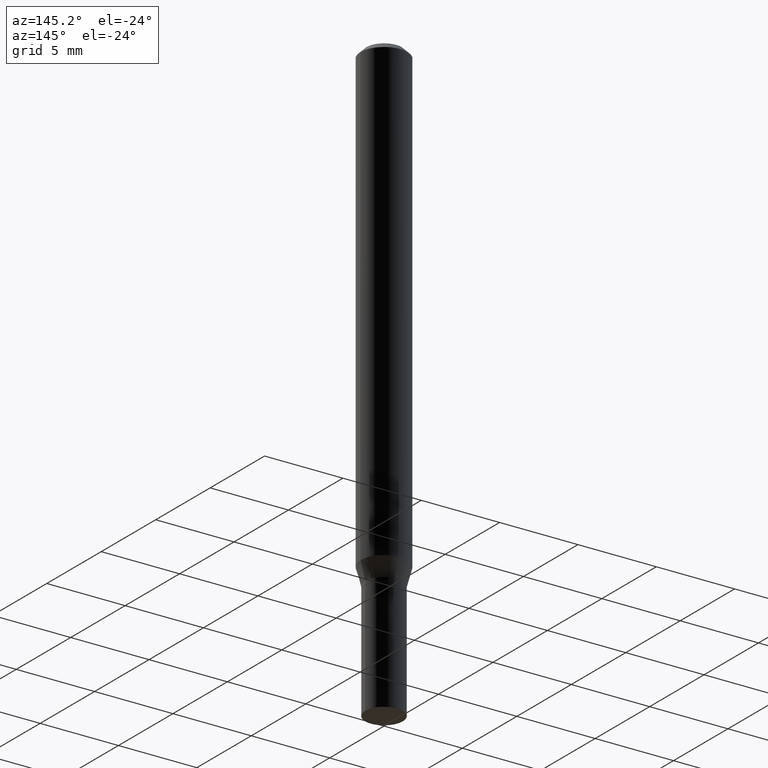
[diagram: clean part render]
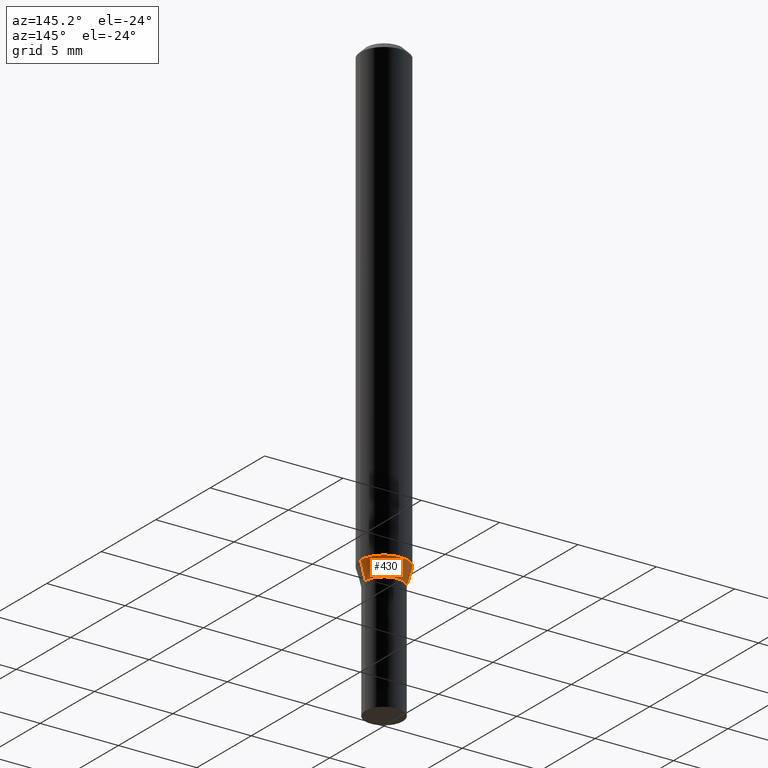
[diagram: same view with one face highlighted and labeled with its STEP entity id]
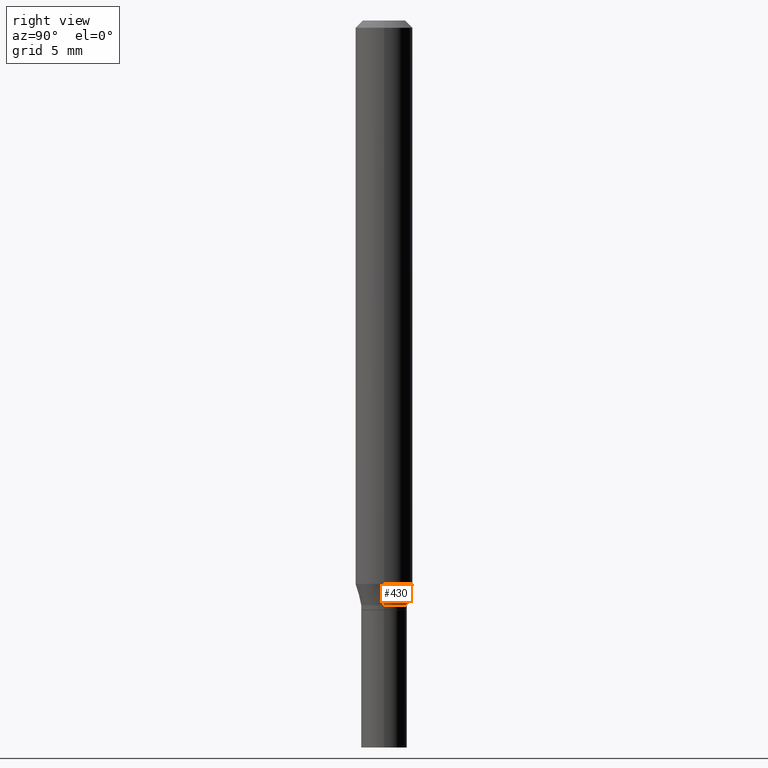
[diagram: same view with one face highlighted and labeled with its STEP entity id]
A machine part, auxiliary view. The second image highlights one B-rep face of the part: STEP entity #430.
A second angle (right view) of the same face is appended — the face is thin or edge-on in the first view.
In plain terms, the highlighted conical surface has half-angle 15 deg.
Its self-contained STEP definition (entity closure, byte-faithful):
#3 = AXIS2_PLACEMENT_3D ( 'NONE', #349, #136, #198 ) ;
#16 = EDGE_CURVE ( 'NONE', #450, #389, #199, .T. ) ;
#25 = CARTESIAN_POINT ( 'NONE',  ( 2.950458114662367757E-29, -4.212472235314255350E-15, -1.206500000000000128 ) ) ;
#41 = CIRCLE ( 'NONE', #445, 0.04725000000000005584 ) ;
#61 = EDGE_CURVE ( 'NONE', #140, #389, #252, .T. ) ;
#82 = CARTESIAN_POINT ( 'NONE',  ( 0.05904999999999999832, -4.471057629578783928E-15, -1.162461800470687701 ) ) ;
#92 = FACE_OUTER_BOUND ( 'NONE', #264, .T. ) ;
#119 = LINE ( 'NONE', #226, #290 ) ;
#136 = DIRECTION ( 'NONE',  ( -2.445468806185136597E-29, 3.491481338843145583E-15, 1.000000000000000000 ) ) ;
#140 = VERTEX_POINT ( 'NONE', #82 ) ;
#163 = CARTESIAN_POINT ( 'NONE',  ( 0.04725000000000005584, -4.542417221834932146E-15, -1.206500000000000128 ) ) ;
#198 = DIRECTION ( 'NONE',  ( 1.000000000000000000, -6.982962677686273021E-15, 0.000000000000000000 ) ) ;
#199 = LINE ( 'NONE', #343, #268 ) ;
#226 = CARTESIAN_POINT ( 'NONE',  ( 0.04725000000000005584, -4.542417221834932146E-15, -1.206500000000000128 ) ) ;
#234 = DIRECTION ( 'NONE',  ( -2.445468806185136597E-29, 3.491481338843145583E-15, 1.000000000000000000 ) ) ;
#252 = CIRCLE ( 'NONE', #3, 0.05904999999999999832 ) ;
#257 = EDGE_CURVE ( 'NONE', #371, #140, #119, .T. ) ;
#264 = EDGE_LOOP ( 'NONE', ( #358, #308, #335, #379 ) ) ;
#268 = VECTOR ( 'NONE', #412, 39.37007874015748854 ) ;
#274 = CARTESIAN_POINT ( 'NONE',  ( -0.05904999999999999832, -3.639138197995071092E-15, -1.162461800470687701 ) ) ;
#285 = CONICAL_SURFACE ( 'NONE', #353, 0.04725000000000005584, 0.2617993877991504625 ) ;
#290 = VECTOR ( 'NONE', #330, 39.37007874015748854 ) ;
#308 = ORIENTED_EDGE ( 'NONE', *, *, #16, .T. ) ;
#330 = DIRECTION ( 'NONE',  ( 0.2588190451025217387, 1.565188264969619207E-15, 0.9659258262890679791 ) ) ;
#335 = ORIENTED_EDGE ( 'NONE', *, *, #61, .F. ) ;
#343 = CARTESIAN_POINT ( 'NONE',  ( -0.04725000000000005584, -3.876740792667607122E-15, -1.206500000000000128 ) ) ;
#349 = CARTESIAN_POINT ( 'NONE',  ( 2.842764071432877128E-29, -4.058713683461410585E-15, -1.162461800470687701 ) ) ;
#353 = AXIS2_PLACEMENT_3D ( 'NONE', #461, #380, #382 ) ;
#358 = ORIENTED_EDGE ( 'NONE', *, *, #421, .T. ) ;
#371 = VERTEX_POINT ( 'NONE', #163 ) ;
#379 = ORIENTED_EDGE ( 'NONE', *, *, #257, .F. ) ;
#380 = DIRECTION ( 'NONE',  ( -2.445468806185136597E-29, 3.491481338843145583E-15, 1.000000000000000000 ) ) ;
#382 = DIRECTION ( 'NONE',  ( 1.000000000000000000, -6.982962677686268288E-15, 0.000000000000000000 ) ) ;
#385 = DIRECTION ( 'NONE',  ( 1.000000000000000000, -6.982962677686268288E-15, 0.000000000000000000 ) ) ;
#389 = VERTEX_POINT ( 'NONE', #274 ) ;
#412 = DIRECTION ( 'NONE',  ( -0.2588190451025217387, 5.211531920934551042E-15, 0.9659258262890679791 ) ) ;
#421 = EDGE_CURVE ( 'NONE', #371, #450, #41, .T. ) ;
#430 = ADVANCED_FACE ( 'NONE', ( #92 ), #285, .T. ) ;
#445 = AXIS2_PLACEMENT_3D ( 'NONE', #25, #234, #385 ) ;
#450 = VERTEX_POINT ( 'NONE', #462 ) ;
#461 = CARTESIAN_POINT ( 'NONE',  ( 2.950458114662367757E-29, -4.212472235314255350E-15, -1.206500000000000128 ) ) ;
#462 = CARTESIAN_POINT ( 'NONE',  ( -0.04725000000000005584, -3.757939495331338713E-15, -1.206500000000000128 ) ) ;